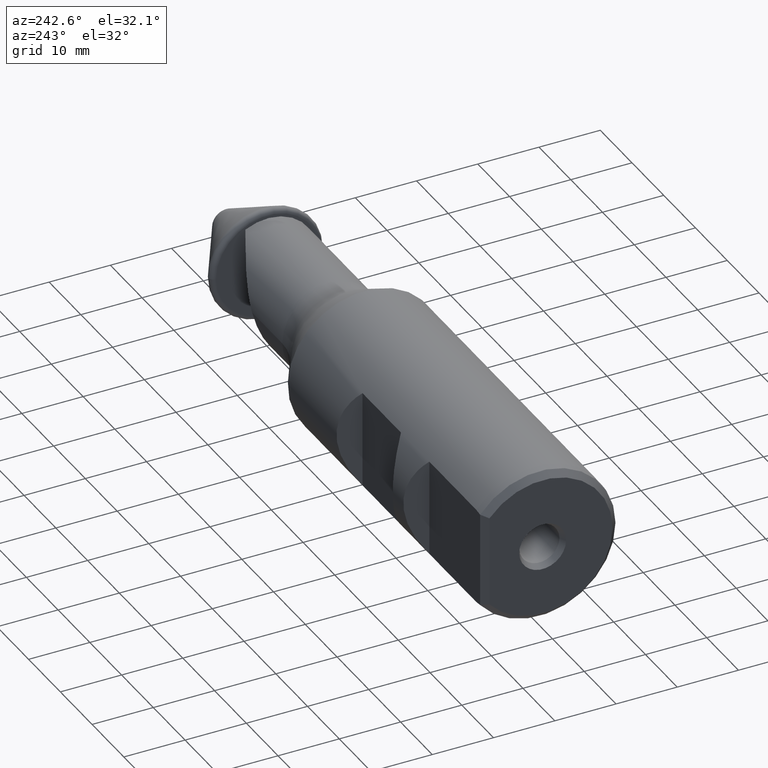
[diagram: clean part render]
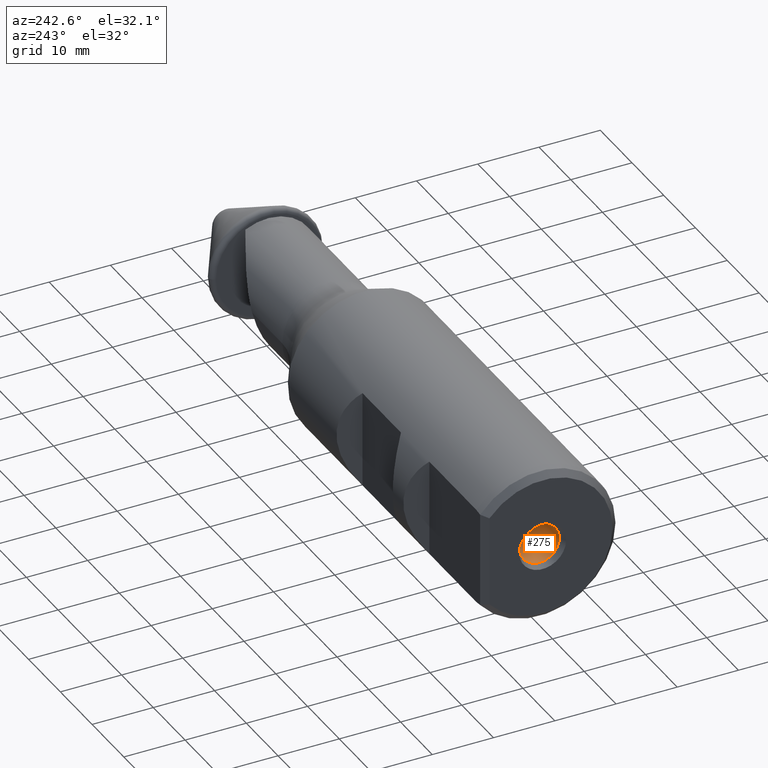
[diagram: same view with one face highlighted and labeled with its STEP entity id]
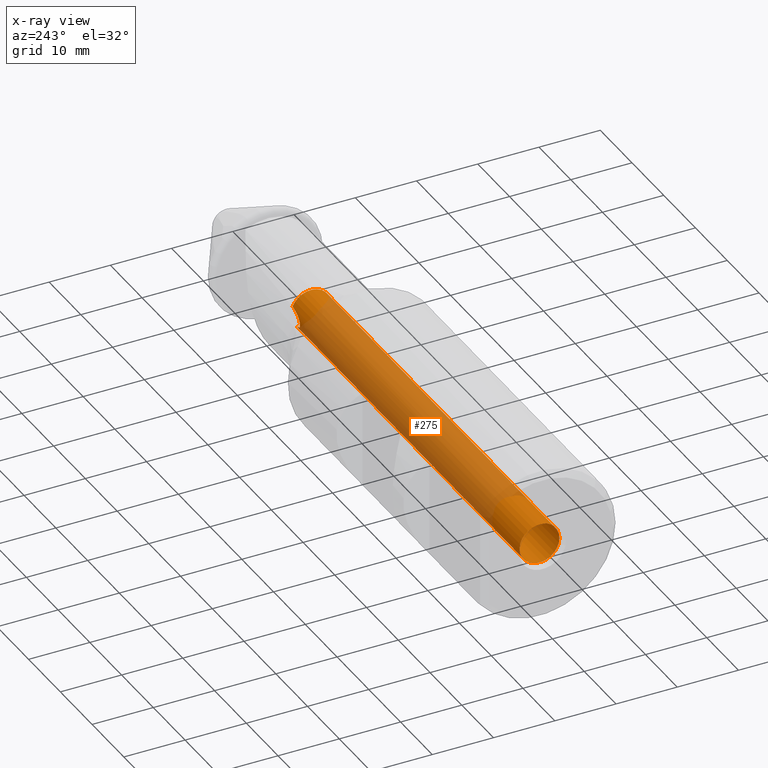
[diagram: x-ray of the same camera — body ghosted, the highlighted face saturated]
A machine part, auxiliary view. The second image highlights one B-rep face of the part: STEP entity #275.
The next image is the same camera in x-ray: the body ghosted, the highlighted face saturated — about 76% of this face is hidden behind the body in this view.
In plain terms, the highlighted cylindrical surface (bore or boss wall) has radius 3.25 mm, axis along (1, 0, -0).
Its self-contained STEP definition (entity closure, byte-faithful):
#33 = CYLINDRICAL_SURFACE ( 'NONE', #1051, 3.249999999999995100 ) ;
#58 = ORIENTED_EDGE ( 'NONE', *, *, #775, .F. ) ;
#84 = DIRECTION ( 'NONE',  ( 0.0000000000000000000, 1.000000000000000000, 0.0000000000000000000 ) ) ;
#87 = DIRECTION ( 'NONE',  ( 1.000000000000000000, 3.020348979285187600E-016, -0.0000000000000000000 ) ) ;
#88 = CARTESIAN_POINT ( 'NONE',  ( -105.9000000000000100, -1.878739556557084100E-014, 0.0000000000000000000 ) ) ;
#105 = VERTEX_POINT ( 'NONE', #463 ) ;
#120 = ORIENTED_EDGE ( 'NONE', *, *, #307, .F. ) ;
#142 = CIRCLE ( 'NONE', #383, 3.249999999999984500 ) ;
#215 = CARTESIAN_POINT ( 'NONE',  ( -105.9000000000000100, 3.249999999999987600, 0.0000000000000000000 ) ) ;
#240 = EDGE_LOOP ( 'NONE', ( #120, #920 ) ) ;
#275 = ADVANCED_FACE ( 'NONE', ( #349, #320 ), #33, .F. ) ;
#307 = EDGE_CURVE ( 'NONE', #369, #105, #1012, .T. ) ;
#320 = FACE_OUTER_BOUND ( 'NONE', #240, .T. ) ;
#349 = FACE_OUTER_BOUND ( 'NONE', #655, .T. ) ;
#369 = VERTEX_POINT ( 'NONE', #858 ) ;
#383 = AXIS2_PLACEMENT_3D ( 'NONE', #427, #426, #413 ) ;
#413 = DIRECTION ( 'NONE',  ( 0.0000000000000000000, 1.000000000000000000, 0.0000000000000000000 ) ) ;
#426 = DIRECTION ( 'NONE',  ( 1.000000000000000000, 3.020348979285187600E-016, -0.0000000000000000000 ) ) ;
#427 = CARTESIAN_POINT ( 'NONE',  ( -33.85279701183959800, 2.973374034993458500E-015, 0.0000000000000000000 ) ) ;
#463 = CARTESIAN_POINT ( 'NONE',  ( -33.85279701183959800, 2.845757479452277300, -1.569765704855771800 ) ) ;
#655 = EDGE_LOOP ( 'NONE', ( #58 ) ) ;
#676 = CIRCLE ( 'NONE', #729, 3.250000000000006200 ) ;
#729 = AXIS2_PLACEMENT_3D ( 'NONE', #88, #87, #84 ) ;
#775 = EDGE_CURVE ( 'NONE', #939, #939, #676, .T. ) ;
#858 = CARTESIAN_POINT ( 'NONE',  ( -33.85279701183402800, 2.982290836348521400, 1.291681604487477000 ) ) ;
#920 = ORIENTED_EDGE ( 'NONE', *, *, #1005, .T. ) ;
#939 = VERTEX_POINT ( 'NONE', #215 ) ;
#953 = CARTESIAN_POINT ( 'NONE',  ( -33.85279701183959800, 2.845757479452277300, -1.569765704855771800 ) ) ;
#954 = CARTESIAN_POINT ( 'NONE',  ( -34.13713590419507000, 2.858084859367068500, -1.547417953540673600 ) ) ;
#961 = CARTESIAN_POINT ( 'NONE',  ( -34.42084100871459600, 2.875149608995976300, -1.516116027254573300 ) ) ;
#962 = CARTESIAN_POINT ( 'NONE',  ( -34.97960163555031700, 2.921236841567654600, -1.425295898287699800 ) ) ;
#963 = CARTESIAN_POINT ( 'NONE',  ( -35.25526687248926500, 2.950260499963454300, -1.366440006485307700 ) ) ;
#965 = CARTESIAN_POINT ( 'NONE',  ( -35.79264808637038400, 3.023754035821158800, -1.195034242113353700 ) ) ;
#969 = CARTESIAN_POINT ( 'NONE',  ( -36.05830641125854900, 3.069297888883943500, -1.083376552193065400 ) ) ;
#976 = CARTESIAN_POINT ( 'NONE',  ( -36.39664803767095700, 3.144371838910045900, -0.8266645691008757100 ) ) ;
#981 = CARTESIAN_POINT ( 'NONE',  ( -36.49835524389405400, 3.170306272205012400, -0.7260219451755751700 ) ) ;
#985 = CARTESIAN_POINT ( 'NONE',  ( -36.64871212989779500, 3.216498038499109800, -0.4817572965616087600 ) ) ;
#989 = CARTESIAN_POINT ( 'NONE',  ( -36.69199688191311300, 3.235372336115250700, -0.3397259802556308300 ) ) ;
#995 = CARTESIAN_POINT ( 'NONE',  ( -36.68669100616818200, 3.248382135142594800, -0.1251018697963688400 ) ) ;
#998 = CARTESIAN_POINT ( 'NONE',  ( -36.67342299668509000, 3.250281401427669100, -0.05260142574738618800 ) ) ;
#1002 = CARTESIAN_POINT ( 'NONE',  ( -36.62890308583630600, 3.249647580354949800, 0.08298615517353170900 ) ) ;
#1005 = EDGE_CURVE ( 'NONE', #369, #105, #142, .T. ) ;
#1007 = CARTESIAN_POINT ( 'NONE',  ( -36.59731288849113200, 3.247194937182674900, 0.1482554587855676700 ) ) ;
#1012 = B_SPLINE_CURVE_WITH_KNOTS ( 'NONE', 3,
 ( #1037, #1031, #1030, #1029, #1027, #1024, #1020, #1018, #1014, #1007, #1002, #998, #995, #989, #985, #981, #976, #969, #965, #963, #962, #961, #954, #953 ),
 .UNSPECIFIED., .F., .F.,
 ( 4, 2, 2, 2, 2, 2, 2, 2, 2, 2, 2, 4 ),
 ( 2.677173792398193300E-015, 0.0008565624206794357900, 0.001713124841356194200, 0.002569687262032952400, 0.002997968472371331900, 0.003212109077540516000, 0.003426249682709700500, 0.003854530893048069200, 0.004282812103386438700, 0.005139374524063175200, 0.005995936944739912500, 0.006852499365416649800 ),
 .UNSPECIFIED. ) ;
#1014 = CARTESIAN_POINT ( 'NONE',  ( -36.48272663180559100, 3.235350742053534100, 0.3316988700325778600 ) ) ;
#1018 = CARTESIAN_POINT ( 'NONE',  ( -36.38152748237649800, 3.221834649344087300, 0.4365566146748125500 ) ) ;
#1020 = CARTESIAN_POINT ( 'NONE',  ( -36.05046352143878600, 3.177560918325552200, 0.7062629485199145600 ) ) ;
#1024 = CARTESIAN_POINT ( 'NONE',  ( -35.79028372976450400, 3.143189259373594200, 0.8329167631625795700 ) ) ;
#1027 = CARTESIAN_POINT ( 'NONE',  ( -35.25474515744481600, 3.083283891284716500, 1.032835659891216300 ) ) ;
#1029 = CARTESIAN_POINT ( 'NONE',  ( -34.97788552444099300, 3.056973092164156000, 1.105045754806013700 ) ) ;
#1030 = CARTESIAN_POINT ( 'NONE',  ( -34.41999004978212900, 3.013416820800783700, 1.218823067777016200 ) ) ;
#1031 = CARTESIAN_POINT ( 'NONE',  ( -34.13754753133373800, 2.995930660485886400, 1.260189383523442100 ) ) ;
#1037 = CARTESIAN_POINT ( 'NONE',  ( -33.85279701183402800, 2.982290836348521400, 1.291681604487477000 ) ) ;
#1051 = AXIS2_PLACEMENT_3D ( 'NONE', #1067, #1064, #1079 ) ;
#1064 = DIRECTION ( 'NONE',  ( 1.000000000000000000, 3.020348979285187600E-016, -0.0000000000000000000 ) ) ;
#1067 = CARTESIAN_POINT ( 'NONE',  ( 2.871083927964673600, 1.406526766618631700E-014, 0.0000000000000000000 ) ) ;
#1079 = DIRECTION ( 'NONE',  ( -2.668805347656630100E-016, 1.000000000000000000, 0.0000000000000000000 ) ) ;